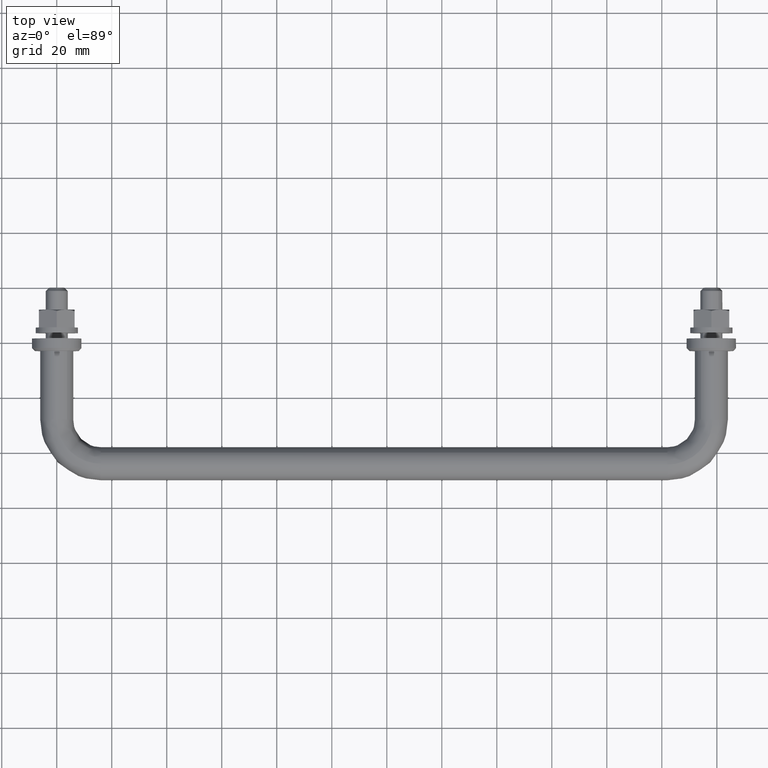
[diagram: clean part render]
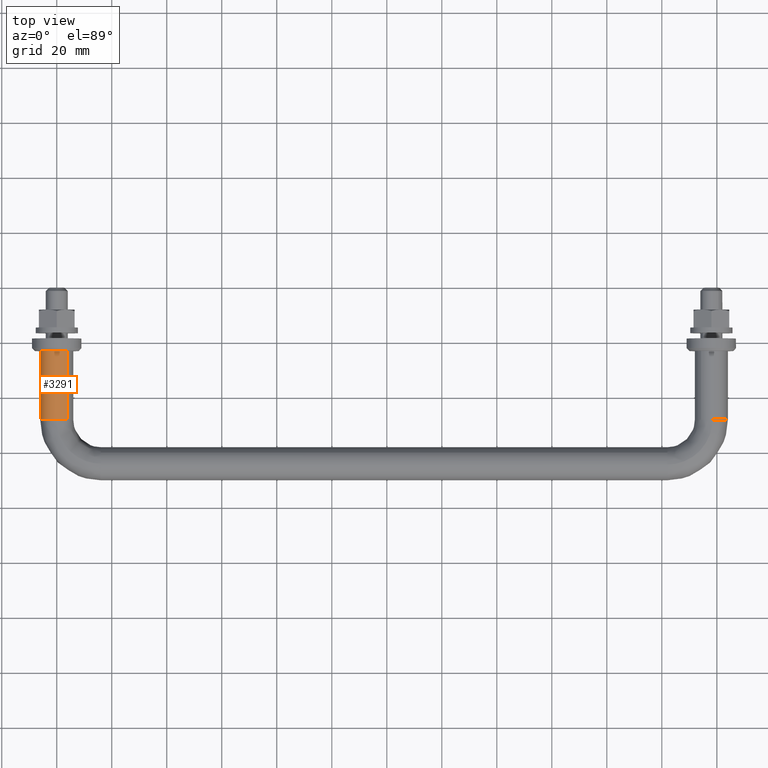
[diagram: same view with one face highlighted and labeled with its STEP entity id]
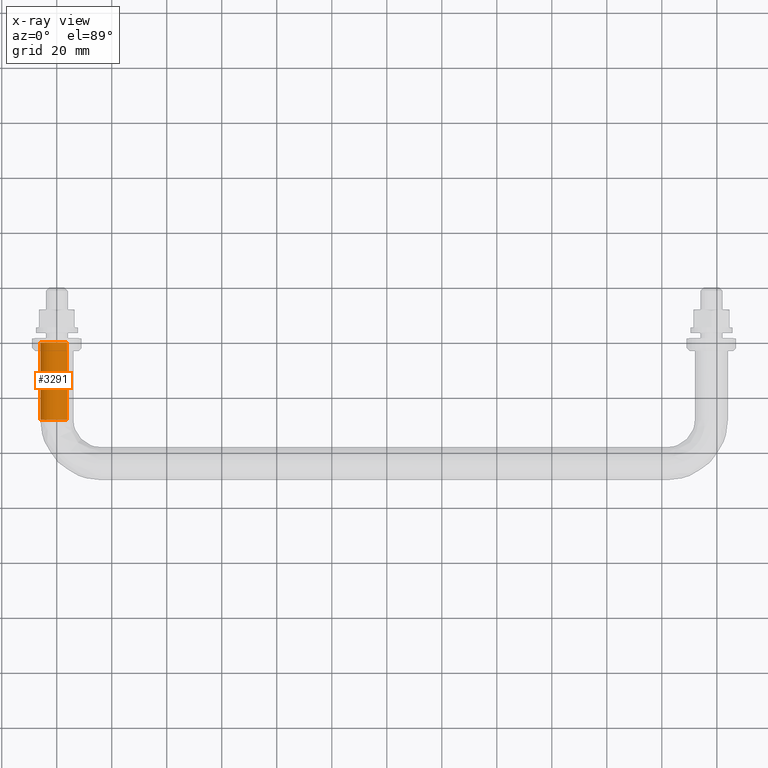
[diagram: x-ray of the same camera — body ghosted, the highlighted face saturated]
A machine part, top view. The second image highlights one B-rep face of the part: STEP entity #3291.
The next image is the same camera in x-ray: the body ghosted, the highlighted face saturated — about 0% of this face is hidden behind the body in this view.
In plain terms, the highlighted face is a freeform B-spline surface patch.
Its self-contained STEP definition (entity closure, byte-faithful):
#3178=CARTESIAN_POINT('',(3.735087819825715,0.700000000524751,4.695648941114483));
#3179=CARTESIAN_POINT('',(-0.960561121288767,0.700000000524750,8.430736760940198));
#3180=CARTESIAN_POINT('',(-4.695648941114483,0.700000000524750,3.735087819825715));
#3181=CARTESIAN_POINT('',(-8.430736760940198,0.700000000524749,-0.960561121288767));
#3182=CARTESIAN_POINT('',(-3.735087819825715,0.700000000524750,-4.695648941114483));
#3183=CARTESIAN_POINT('',(3.735087819825719,-28.717500021527830,4.695648941114483));
#3184=CARTESIAN_POINT('',(-0.960561121288764,-28.717500021527826,8.430736760940198));
#3185=CARTESIAN_POINT('',(-4.695648941114479,-28.717500021527830,3.735087819825715));
#3186=CARTESIAN_POINT('',(-8.430736760940194,-28.717500021527826,-0.960561121288767));
#3187=CARTESIAN_POINT('',(-3.735087819825712,-28.717500021527830,-4.695648941114483));
#3195=(BOUNDED_SURFACE()B_SPLINE_SURFACE(2,1,((#3178,#3183),(#3179,#3184),(#3180,#3185),(#3181,#3186),(#3182,#3187)),.UNSPECIFIED.,.F.,.F.,.U.)B_SPLINE_SURFACE_WITH_KNOTS((3,2,3),(2,2),(0.0,9.941125496954278,19.882250993908560),(0.0,29.417500022052579),.UNSPECIFIED.)GEOMETRIC_REPRESENTATION_ITEM()RATIONAL_B_SPLINE_SURFACE(((1.0,1.0),(0.707106781186548,0.707106781186548),(1.0,1.0),(0.707106781186548,0.707106781186548),(1.0,1.0)))REPRESENTATION_ITEM('')SURFACE());
#3196=CARTESIAN_POINT('',(-0.075396262307778,-28.000000005107950,5.999526264933758));
#3197=VERTEX_POINT('',#3196);
#3198=CARTESIAN_POINT('',(3.735087819829730,-28.0,4.695648941111294));
#3199=VERTEX_POINT('',#3198);
#3200=CARTESIAN_POINT('',(-0.075396262307778,-28.000000005107953,5.999526264933758));
#3201=CARTESIAN_POINT('',(-0.037699630961730,-28.0,6.0));
#3202=CARTESIAN_POINT('',(3.428898E-015,-28.0,6.0));
#3203=CARTESIAN_POINT('',(2.095293800534970,-28.0,6.0));
#3204=CARTESIAN_POINT('',(3.735087819829730,-28.000000000000004,4.695648941111293));
#3212=(BOUNDED_CURVE()B_SPLINE_CURVE(2,(#3200,#3201,#3202,#3203,#3204),.UNSPECIFIED.,.F.,.U.)B_SPLINE_CURVE_WITH_KNOTS((3,2,3),(0.747784294572858,0.750000000000000,0.857863877391703),.UNSPECIFIED.)CURVE()GEOMETRIC_REPRESENTATION_ITEM()RATIONAL_B_SPLINE_CURVE((0.994854292539437,0.997404139622008,1.0,0.873629607028178,0.856305618643988))REPRESENTATION_ITEM(''));
#3213=EDGE_CURVE('',#3197,#3199,#3212,.T.);
#3214=ORIENTED_EDGE('',*,*,#3213,.T.);
#3215=CARTESIAN_POINT('',(3.735087819830415,-5.551115E-017,4.695648941110745));
#3216=VERTEX_POINT('',#3215);
#3217=CARTESIAN_POINT('',(3.735087819830415,-5.551115E-017,4.695648941110745));
#3218=CARTESIAN_POINT('',(3.735087819829730,-28.0,4.695648941111294));
#3219=QUASI_UNIFORM_CURVE('',1,(#3217,#3218),.UNSPECIFIED.,.F.,.U.);
#3220=EDGE_CURVE('',#3216,#3199,#3219,.T.);
#3221=ORIENTED_EDGE('',*,*,#3220,.F.);
#3222=CARTESIAN_POINT('',(-6.0,0.0,0.0));
#3223=VERTEX_POINT('',#3222);
#3224=CARTESIAN_POINT('',(-6.0,0.0,0.0));
#3225=CARTESIAN_POINT('',(-6.0,0.0,6.0));
#3226=CARTESIAN_POINT('',(0.0,0.0,6.0));
#3227=CARTESIAN_POINT('',(2.095293800535981,0.0,6.000000000000001));
#3228=CARTESIAN_POINT('',(3.735087819830416,-5.551115E-017,4.695648941110745));
#3236=(BOUNDED_CURVE()B_SPLINE_CURVE(2,(#3224,#3225,#3226,#3227,#3228),.UNSPECIFIED.,.F.,.U.)B_SPLINE_CURVE_WITH_KNOTS((3,2,3),(0.500000000000000,0.750000000000000,0.857863877391749),.UNSPECIFIED.)CURVE()GEOMETRIC_REPRESENTATION_ITEM()RATIONAL_B_SPLINE_CURVE((1.0,0.707106781186548,1.0,0.873629607028125,0.856305618643973))REPRESENTATION_ITEM(''));
#3237=EDGE_CURVE('',#3223,#3216,#3236,.T.);
#3238=ORIENTED_EDGE('',*,*,#3237,.F.);
#3239=CARTESIAN_POINT('',(-3.735087819830416,1.110223E-015,-4.695648941110745));
#3240=VERTEX_POINT('',#3239);
#3241=CARTESIAN_POINT('',(-3.735087819830416,1.110223E-015,-4.695648941110745));
#3242=CARTESIAN_POINT('',(-6.000000000000001,0.0,-2.894056444898020));
#3243=CARTESIAN_POINT('',(-6.0,0.0,0.0));
#3251=(BOUNDED_CURVE()B_SPLINE_CURVE(2,(#3241,#3242,#3243),.UNSPECIFIED.,.F.,.U.)B_SPLINE_CURVE_WITH_KNOTS((3,3),(0.357863877391749,0.500000000000000),.UNSPECIFIED.)CURVE()GEOMETRIC_REPRESENTATION_ITEM()RATIONAL_B_SPLINE_CURVE((0.856305618643973,0.833477174158423,1.0))REPRESENTATION_ITEM(''));
#3252=EDGE_CURVE('',#3240,#3223,#3251,.T.);
#3253=ORIENTED_EDGE('',*,*,#3252,.F.);
#3254=CARTESIAN_POINT('',(-3.735087819829720,-28.0,-4.695648941111295));
#3255=VERTEX_POINT('',#3254);
#3256=CARTESIAN_POINT('',(-3.735087819830416,1.110223E-015,-4.695648941110745));
#3257=CARTESIAN_POINT('',(-3.735087819829720,-28.0,-4.695648941111295));
#3258=QUASI_UNIFORM_CURVE('',1,(#3256,#3257),.UNSPECIFIED.,.F.,.U.);
#3259=EDGE_CURVE('',#3240,#3255,#3258,.T.);
#3260=ORIENTED_EDGE('',*,*,#3259,.T.);
#3261=CARTESIAN_POINT('',(-5.999999999999996,-28.0,0.0));
#3262=VERTEX_POINT('',#3261);
#3263=CARTESIAN_POINT('',(-3.735087819829721,-28.000000000000004,-4.695648941111295));
#3264=CARTESIAN_POINT('',(-5.999999999999997,-28.0,-2.894056444899111));
#3265=CARTESIAN_POINT('',(-5.999999999999996,-28.0,0.0));
#3273=(BOUNDED_CURVE()B_SPLINE_CURVE(2,(#3263,#3264,#3265),.UNSPECIFIED.,.F.,.U.)B_SPLINE_CURVE_WITH_KNOTS((3,3),(0.357863877391704,0.500000000000000),.UNSPECIFIED.)CURVE()GEOMETRIC_REPRESENTATION_ITEM()RATIONAL_B_SPLINE_CURVE((0.856305618643987,0.833477174158370,1.0))REPRESENTATION_ITEM(''));
#3274=EDGE_CURVE('',#3255,#3262,#3273,.T.);
#3275=ORIENTED_EDGE('',*,*,#3274,.T.);
#3276=CARTESIAN_POINT('',(-5.999999999999996,-28.0,0.0));
#3277=CARTESIAN_POINT('',(-5.999999999999996,-28.000000000000004,5.925071533995980));
#3278=CARTESIAN_POINT('',(-0.075396262307778,-28.000000005107950,5.999526264933758));
#3286=(BOUNDED_CURVE()B_SPLINE_CURVE(2,(#3276,#3277,#3278),.UNSPECIFIED.,.F.,.U.)B_SPLINE_CURVE_WITH_KNOTS((3,3),(0.500000000000000,0.747784294572857),.UNSPECIFIED.)CURVE()GEOMETRIC_REPRESENTATION_ITEM()RATIONAL_B_SPLINE_CURVE((1.0,0.709702641564541,0.994854292539434))REPRESENTATION_ITEM(''));
#3287=EDGE_CURVE('',#3262,#3197,#3286,.T.);
#3288=ORIENTED_EDGE('',*,*,#3287,.T.);
#3289=EDGE_LOOP('',(#3214,#3221,#3238,#3253,#3260,#3275,#3288));
#3290=FACE_OUTER_BOUND('',#3289,.T.);
#3291=ADVANCED_FACE('',(#3290),#3195,.T.);